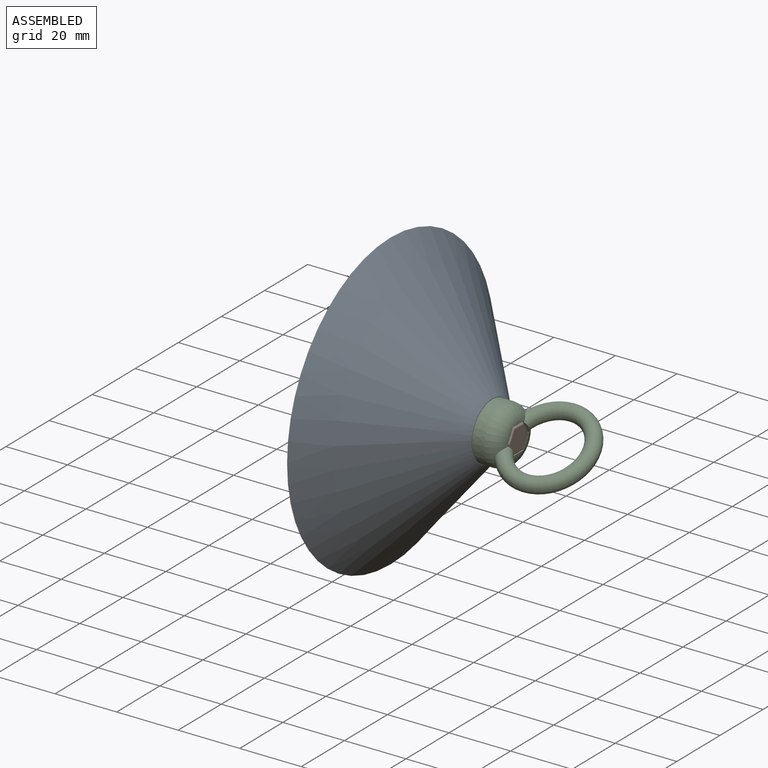
[diagram: assembled view]
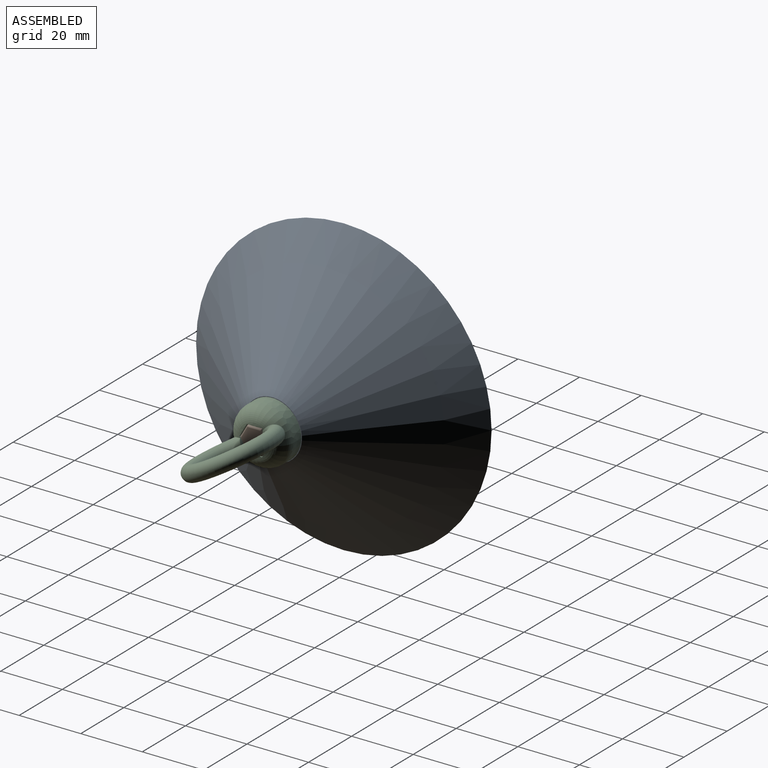
[diagram: assembled view, second angle]
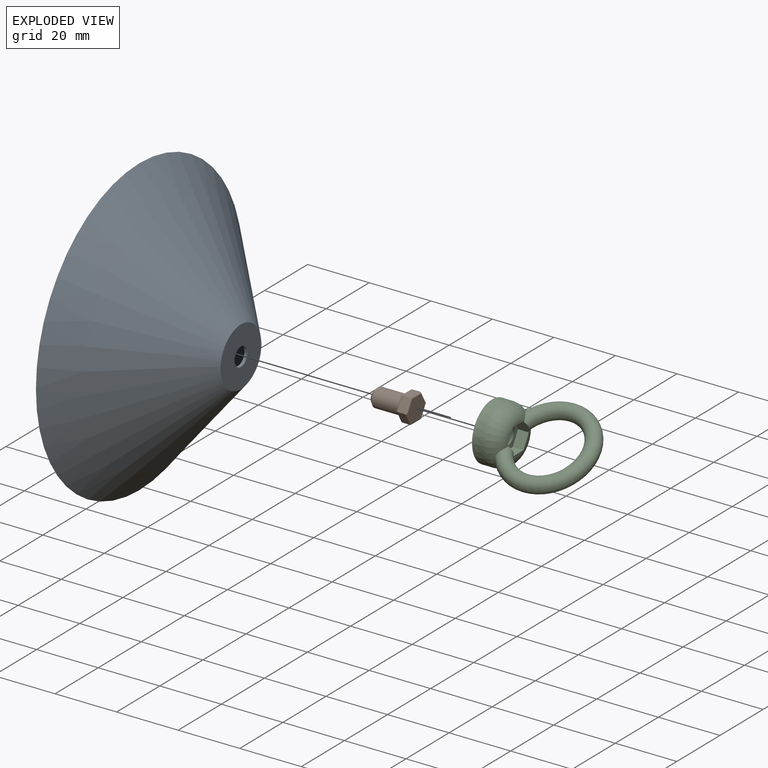
[diagram: exploded view]
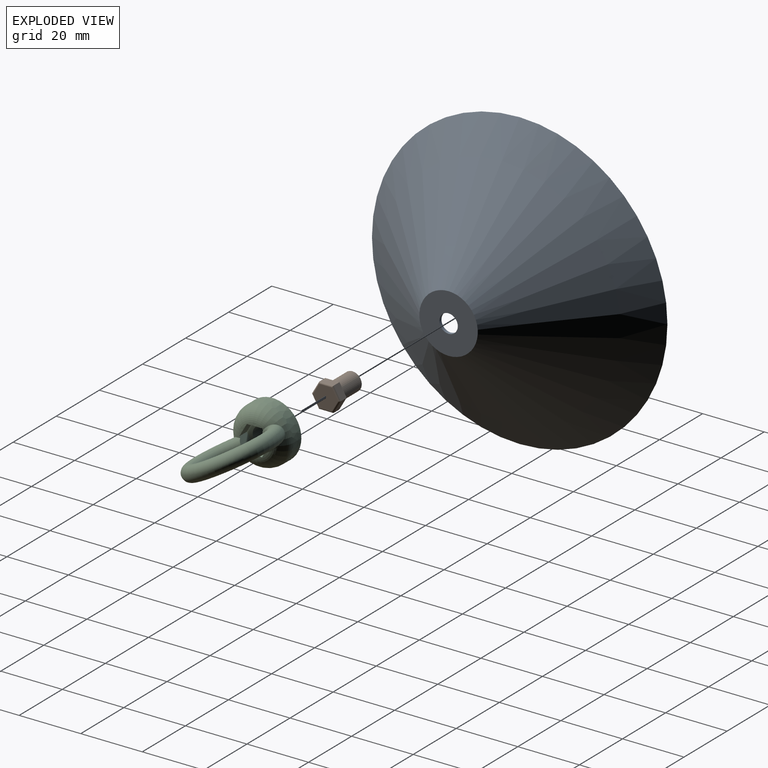
[diagram: exploded view, second angle]
ASSEMBLY  parts=3 mates=3
PART A: 6 faces, bbox 33x96x96 mm
  f0: plane 96x96mm, normal (-1,0,0), area 456mm2, adj f2,f4
  f1: plane 19x19mm, normal (1,0,0), area 255.3mm2, adj f2,f5
  f2: cone r=48mm half-angle=49.4deg, axis (-1,0,0), area 9159.9mm2, adj f0,f1
  f3: plane 18.26x18.26mm, normal (-1,0,0), area 233.6mm2, adj f4,f5
  f4: cone r=47.35mm half-angle=49.4deg, axis (-1,0,0), area 8587.8mm2, adj f0,f3
  f5: cylinder r=3mm len=6mm, axis (1,0,0), area 18.8mm2, adj f1,f3
PART B: 29 faces, bbox 8.3x13.5x9.2 mm
  f0: plane 3.5x1.01mm, normal (0,-1,0), area 0.7mm2, adj f15,f16,f17
  f1: plane 3.03x1.75mm, normal (0,-1,0), area 0.7mm2, adj f15,f16,f18
  f2: plane 3.03x1.75mm, normal (0,-1,0), area 0.7mm2, adj f15,f17,f19
  f3: plane 3.03x1.75mm, normal (0,-1,0), area 0.7mm2, adj f15,f19,f21
  f4: plane 3.5x1.01mm, normal (0,-1,0), area 0.7mm2, adj f15,f20,f21
  f5: cylinder r=3mm len=8.5mm, axis (0,1,0), area 160.2mm2, adj f15,f28
  f6: plane 4x4mm, normal (0,-1,0), area 12.6mm2, adj f28
  f7: plane 4.62x2.5mm, normal (1,0,0), area 11.5mm2, adj f8,f12,f18,f24
  f8: plane 4x2.5mm, normal (0.5,0,0.87), area 11.5mm2, adj f7,f9,f16,f22
  f9: plane 4x2.5mm, normal (-0.5,0,0.87), area 11.5mm2, adj f8,f10,f17,f23
  f10: plane 4.62x2.5mm, normal (-1,0,0), area 11.5mm2, adj f9,f11,f19,f25
  f11: plane 4x2.5mm, normal (-0.5,0,-0.87), area 11.5mm2, adj f10,f12,f21,f27
  f12: plane 4x2.5mm, normal (0.5,0,-0.87), area 11.5mm2, adj f7,f11,f20,f26
  f13: plane 8.08x7mm, normal (0,1,0), area 42.4mm2, adj f22,f23,f24,f25,f26,f27
  f14: plane 3.03x1.75mm, normal (0,-1,0), area 0.7mm2, adj f15,f18,f20
  f15: torus R=3.5mm, axis (0,-1,0), area 15.7mm2, adj f0,f1,f2,f3,f4,f5,f14
  f16: cylinder r=0.5mm len=4.25mm, axis (-0.87,0,0.5), area 3.5mm2, adj f0,f1,f8,f17,f18
  f17: cylinder r=0.5mm len=4.25mm, axis (-0.87,0,-0.5), area 3.5mm2, adj f0,f2,f9,f16,f19
  f18: cylinder r=0.5mm len=4.62mm, axis (0,0,1), area 3.5mm2, adj f1,f7,f14,f16,f20
  f19: cylinder r=0.5mm len=4.62mm, axis (0,0,-1), area 3.5mm2, adj f2,f3,f10,f17,f21
  f20: cylinder r=0.5mm len=4.25mm, axis (0.87,0,0.5), area 3.5mm2, adj f4,f12,f14,f18,f21
  f21: cylinder r=0.5mm len=4.25mm, axis (0.87,0,-0.5), area 3.5mm2, adj f3,f4,f11,f19,f20
  f22: cylinder r=0.5mm len=4.25mm, axis (0.87,0,-0.5), area 3.5mm2, adj f8,f13,f23,f24
  f23: cylinder r=0.5mm len=4.25mm, axis (0.87,0,0.5), area 3.5mm2, adj f9,f13,f22,f25
  f24: cylinder r=0.5mm len=4.62mm, axis (0,0,-1), area 3.5mm2, adj f7,f13,f22,f26
  f25: cylinder r=0.5mm len=4.62mm, axis (0,0,1), area 3.5mm2, adj f10,f13,f23,f27
  f26: cylinder r=0.5mm len=4.25mm, axis (-0.87,0,-0.5), area 3.5mm2, adj f12,f13,f24,f27
  f27: cylinder r=0.5mm len=4.25mm, axis (-0.87,0,0.5), area 3.5mm2, adj f11,f13,f25,f26
  f28: cone r=2mm half-angle=45deg, axis (0,1,0), area 22.2mm2, adj f5,f6
PART C: 16 faces, bbox 18.8x35x28.8 mm
  f0: plane 1.08x0.03mm, normal (0,-1,0), area 0mm2, adj f2,f8
  f1: plane 1.08x0.03mm, normal (0,-1,0), area 0mm2, adj f2,f11
  f2: torus R=4.28mm, axis (0,-1,0), area 317.4mm2, adj f0,f1,f3,f4,f6,f7,f8,f9
  f3: plane 0.94x0.54mm, normal (0,-1,0), area 0mm2, adj f2,f9
  f4: plane 0.94x0.54mm, normal (0,-1,0), area 0mm2, adj f2,f12
  f5: plane 18.62x18.62mm, normal (0,1,0), area 243.9mm2, adj f6,f15
  f6: cone r=9.31mm half-angle=0.4deg, axis (0,1,0), area 206.5mm2, adj f2,f5
  f7: torus R=12.5mm, axis (0.87,0,0.5), area 1026.2mm2, adj f2,f10,f13
  f8: plane 5.13x3.72mm, normal (-1,0,0), area 17.1mm2, adj f0,f2,f9,f13,f14
  f9: plane 4.47x3.72mm, normal (-0.5,0,-0.87), area 17.1mm2, adj f2,f3,f8,f10,f14
  f10: plane 4.47x4.27mm, normal (0.5,0,-0.87), area 19.6mm2, adj f2,f7,f9,f11,f14
  f11: plane 5.13x3.72mm, normal (1,0,0), area 17.1mm2, adj f1,f2,f10,f12,f14
  f12: plane 4.47x3.72mm, normal (0.5,0,0.87), area 17.1mm2, adj f2,f4,f11,f13,f14
  f13: plane 4.47x4.27mm, normal (-0.5,0,0.87), area 19.6mm2, adj f2,f7,f8,f12,f14
  f14: plane 9.82x8.5mm, normal (0,-1,0), area 34.3mm2, adj f8,f9,f10,f11,f12,f13,f15
  f15: cylinder r=3mm len=6mm, axis (0,-1,0), area 94.2mm2, adj f5,f14
PLACE A t=(-30.78,-6.08,3.25)mm fixed
PLACE B rot(axis=(0.25,0.25,-0.94),93.8deg) t=(7.49,-6.08,3.25)mm
PLACE C rot(axis=(-0.58,0.58,0.58),120deg) t=(10.72,-6.08,3.25)mm
MATE parallel B.f10 <-> C.f10  axis (0,0.87,0.5) through (9.24,-2.62,5.25)mm
MATE cylindrical B.f5 <-> C.f15  axis (1,0,0) through (-1.51,-6.08,3.25)mm
MATE cylindrical A.f5 <-> C.f15  axis (1,0,0) through (2.22,-6.08,3.25)mm
